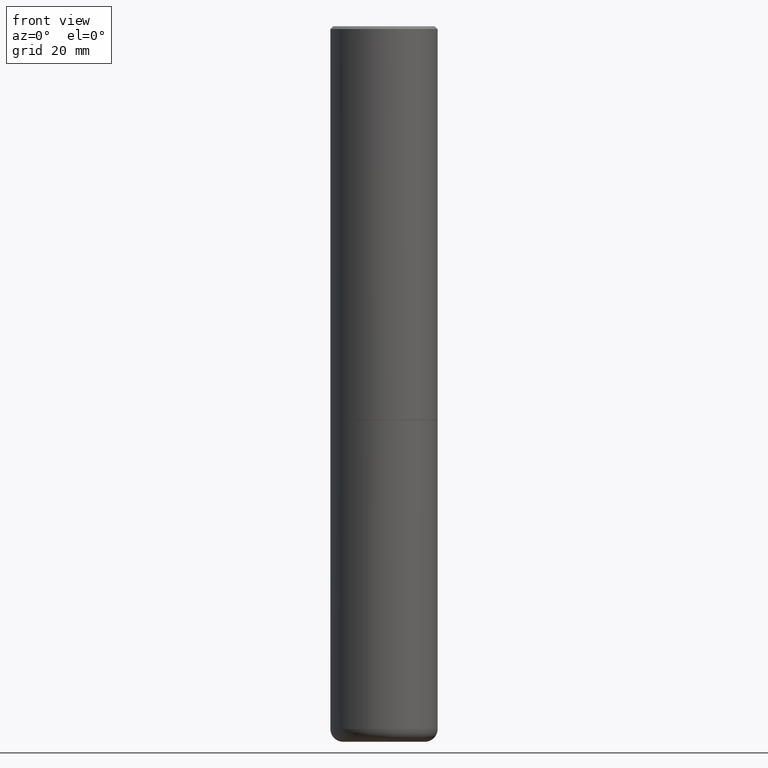
[diagram: clean part render]
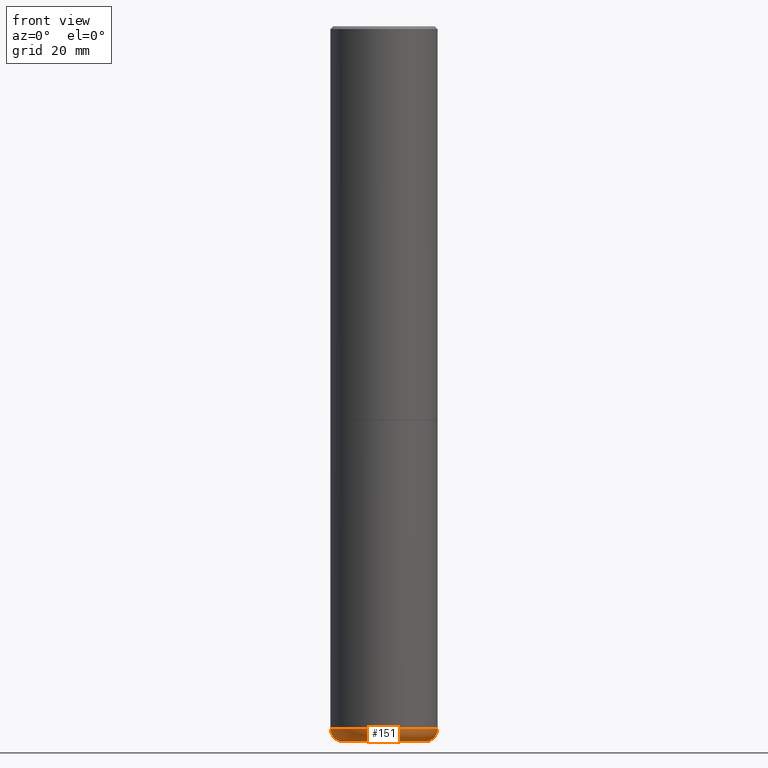
[diagram: same view with one face highlighted and labeled with its STEP entity id]
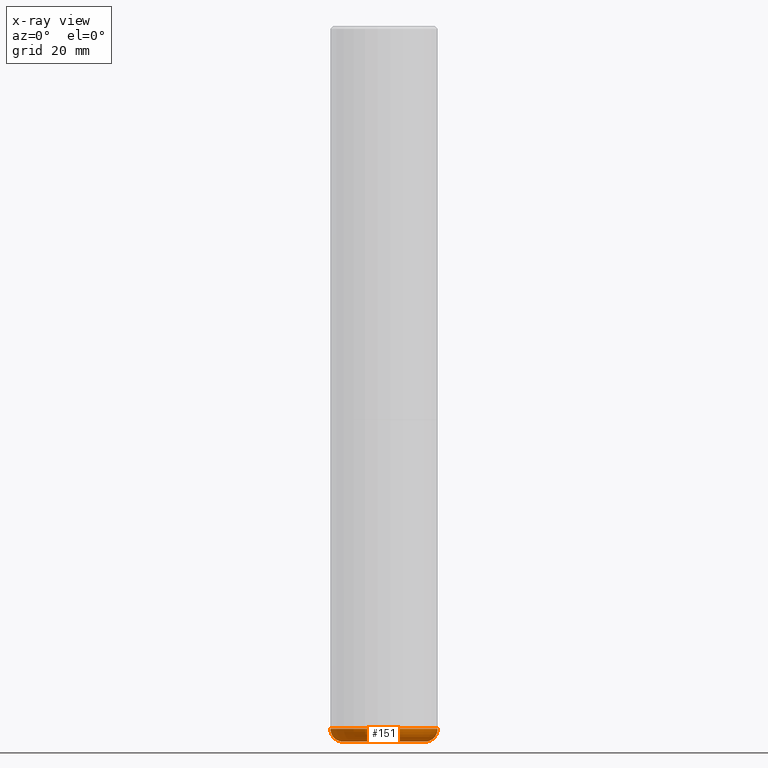
[diagram: x-ray of the same camera — body ghosted, the highlighted face saturated]
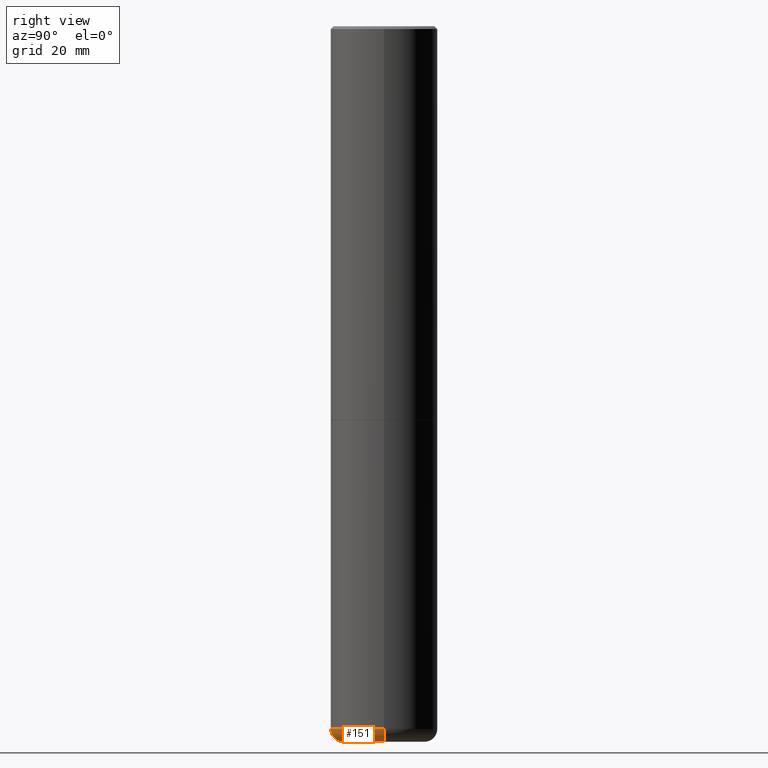
[diagram: same view with one face highlighted and labeled with its STEP entity id]
A machine part, front view. The second image highlights one B-rep face of the part: STEP entity #151.
The next image is the same camera in x-ray: the body ghosted, the highlighted face saturated — about 0% of this face is hidden behind the body in this view.
A second angle (right view) of the same face is appended — the face is thin or edge-on in the first view.
In plain terms, the highlighted toroidal blend (fillet) surface has major radius 7.239 mm and minor (blend) radius 2.286 mm.
Its self-contained STEP definition (entity closure, byte-faithful):
#13 = TOROIDAL_SURFACE ( 'NONE', #358, 0.2850000000000003086, 0.08999999999999984401 ) ;
#30 = VERTEX_POINT ( 'NONE', #491 ) ;
#48 = CARTESIAN_POINT ( 'NONE',  ( -0.2850000000000003086, -1.511813854184553716E-14, -4.910003426924224534 ) ) ;
#59 = AXIS2_PLACEMENT_3D ( 'NONE', #48, #152, #315 ) ;
#61 = CARTESIAN_POINT ( 'NONE',  ( -0.3750000000000000555, -1.070784425118986345E-14, -4.910003426924224534 ) ) ;
#81 = EDGE_CURVE ( 'NONE', #492, #30, #246, .T. ) ;
#96 = DIRECTION ( 'NONE',  ( 1.000000000000000000, -6.982962677686260400E-15, 0.000000000000000000 ) ) ;
#126 = AXIS2_PLACEMENT_3D ( 'NONE', #331, #244, #96 ) ;
#131 = AXIS2_PLACEMENT_3D ( 'NONE', #216, #134, #209 ) ;
#134 = DIRECTION ( 'NONE',  ( -6.982962677686266711E-15, -1.000000000000000000, 3.491481338843145583E-15 ) ) ;
#151 = ADVANCED_FACE ( 'NONE', ( #403 ), #13, .T. ) ;
#152 = DIRECTION ( 'NONE',  ( 7.105427357601001859E-15, 1.000000000000000000, -3.491481338843145583E-15 ) ) ;
#163 = DIRECTION ( 'NONE',  ( -2.445468806185136597E-29, 3.491481338843145583E-15, 1.000000000000000000 ) ) ;
#204 = ORIENTED_EDGE ( 'NONE', *, *, #81, .F. ) ;
#206 = CARTESIAN_POINT ( 'NONE',  ( 0.2842146118051471215, -1.944206672090416141E-14, -5.000000000000000000 ) ) ;
#207 = CARTESIAN_POINT ( 'NONE',  ( 1.200726021880531330E-28, -1.714318533876182370E-14, -4.910003426924224534 ) ) ;
#209 = DIRECTION ( 'NONE',  ( 1.000000000000000000, -6.982962677686279332E-15, 0.000000000000000000 ) ) ;
#216 = CARTESIAN_POINT ( 'NONE',  ( 0.2850000000000003086, -1.913332970190241034E-14, -4.910003426924224534 ) ) ;
#228 = CIRCLE ( 'NONE', #126, 0.2842146118051471215 ) ;
#244 = DIRECTION ( 'NONE',  ( -2.445468806185136597E-29, 3.491481338843145583E-15, 1.000000000000000000 ) ) ;
#246 = CIRCLE ( 'NONE', #381, 0.3750000000000000555 ) ;
#262 = VERTEX_POINT ( 'NONE', #428 ) ;
#281 = CIRCLE ( 'NONE', #59, 0.08999999999999985789 ) ;
#298 = EDGE_CURVE ( 'NONE', #262, #492, #281, .T. ) ;
#300 = CARTESIAN_POINT ( 'NONE',  ( 1.200726021880531330E-28, -1.714318533876182370E-14, -4.910003426924224534 ) ) ;
#304 = DIRECTION ( 'NONE',  ( 1.000000000000000000, -6.982962677686266711E-15, 0.000000000000000000 ) ) ;
#314 = CIRCLE ( 'NONE', #131, 0.08999999999999985789 ) ;
#315 = DIRECTION ( 'NONE',  ( -1.000000000000000000, 7.105427357601001859E-15, 0.000000000000000000 ) ) ;
#331 = CARTESIAN_POINT ( 'NONE',  ( 1.222734403092568523E-28, -1.745740669421572989E-14, -5.000000000000000000 ) ) ;
#340 = ORIENTED_EDGE ( 'NONE', *, *, #298, .F. ) ;
#356 = EDGE_CURVE ( 'NONE', #262, #416, #228, .T. ) ;
#358 = AXIS2_PLACEMENT_3D ( 'NONE', #207, #163, #363 ) ;
#363 = DIRECTION ( 'NONE',  ( 1.000000000000000000, -6.982962677686265133E-15, 4.883557194083112340E-29 ) ) ;
#381 = AXIS2_PLACEMENT_3D ( 'NONE', #300, #409, #304 ) ;
#403 = FACE_OUTER_BOUND ( 'NONE', #453, .T. ) ;
#405 = ORIENTED_EDGE ( 'NONE', *, *, #455, .T. ) ;
#409 = DIRECTION ( 'NONE',  ( -2.445468806185136597E-29, 3.491481338843145583E-15, 1.000000000000000000 ) ) ;
#416 = VERTEX_POINT ( 'NONE', #206 ) ;
#428 = CARTESIAN_POINT ( 'NONE',  ( -0.2842146118051471215, -1.495829524786346745E-14, -5.000000000000000000 ) ) ;
#453 = EDGE_LOOP ( 'NONE', ( #340, #461, #405, #204 ) ) ;
#455 = EDGE_CURVE ( 'NONE', #416, #30, #314, .T. ) ;
#461 = ORIENTED_EDGE ( 'NONE', *, *, #356, .T. ) ;
#491 = CARTESIAN_POINT ( 'NONE',  ( 0.3750000000000000555, -1.976179634289417687E-14, -4.910003426924224534 ) ) ;
#492 = VERTEX_POINT ( 'NONE', #61 ) ;